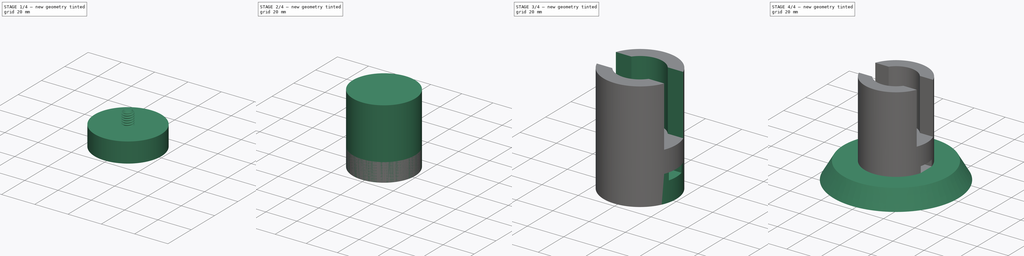
[diagram: build sequence overview — one tinted view per stage of 4, left to right]
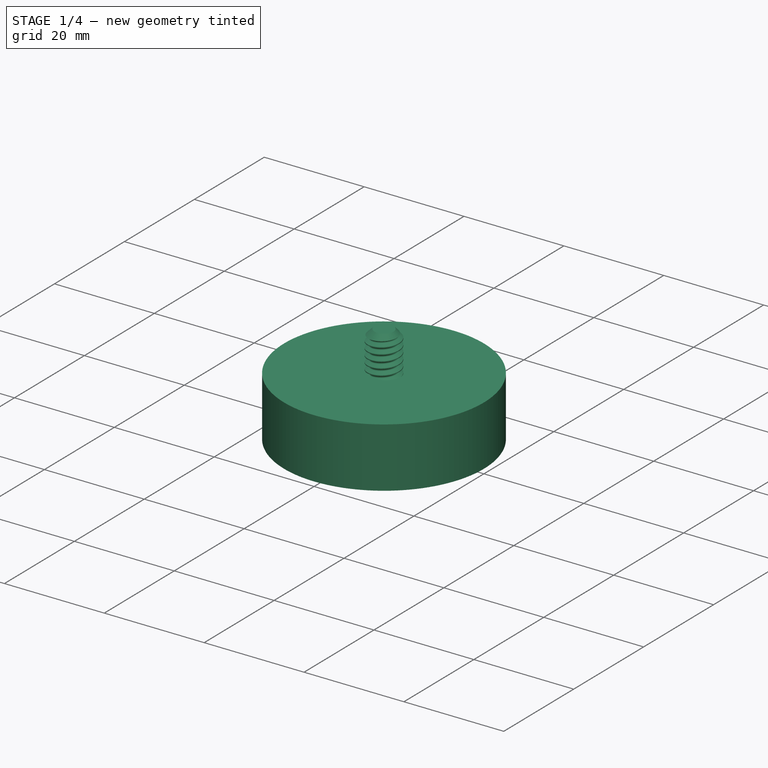
[diagram: stage 1 of 4 — iso view after this stage's code; geometry added in this stage tinted green]
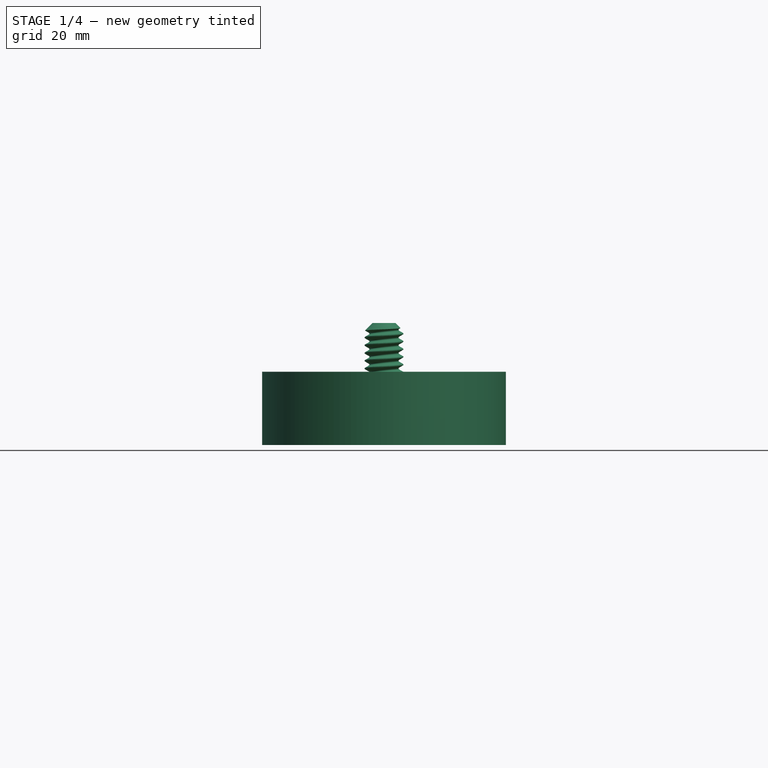
[diagram: stage 1 of 4 — front view after this stage's code; geometry added in this stage tinted green]
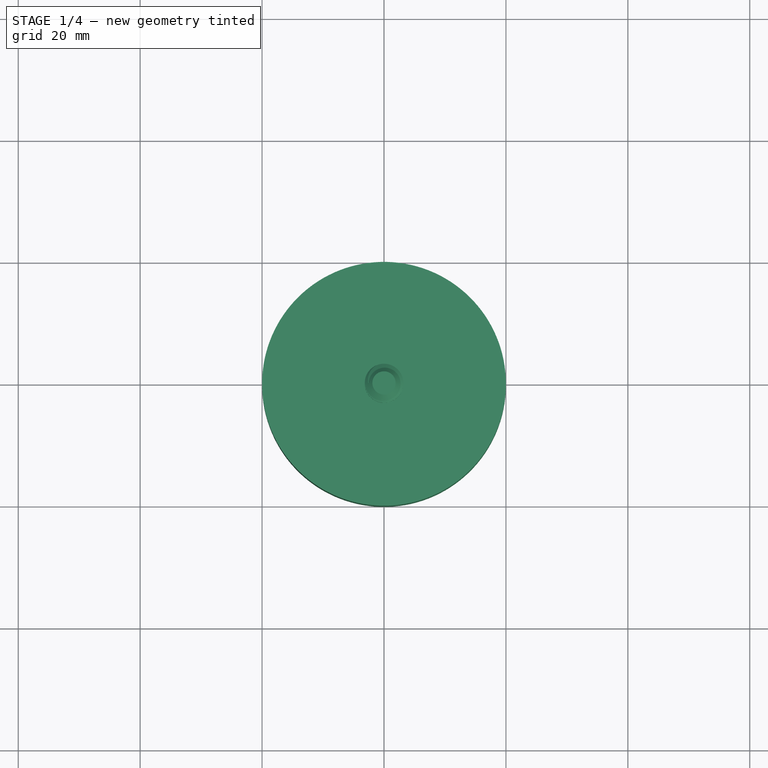
[diagram: stage 1 of 4 — top view after this stage's code; geometry added in this stage tinted green]
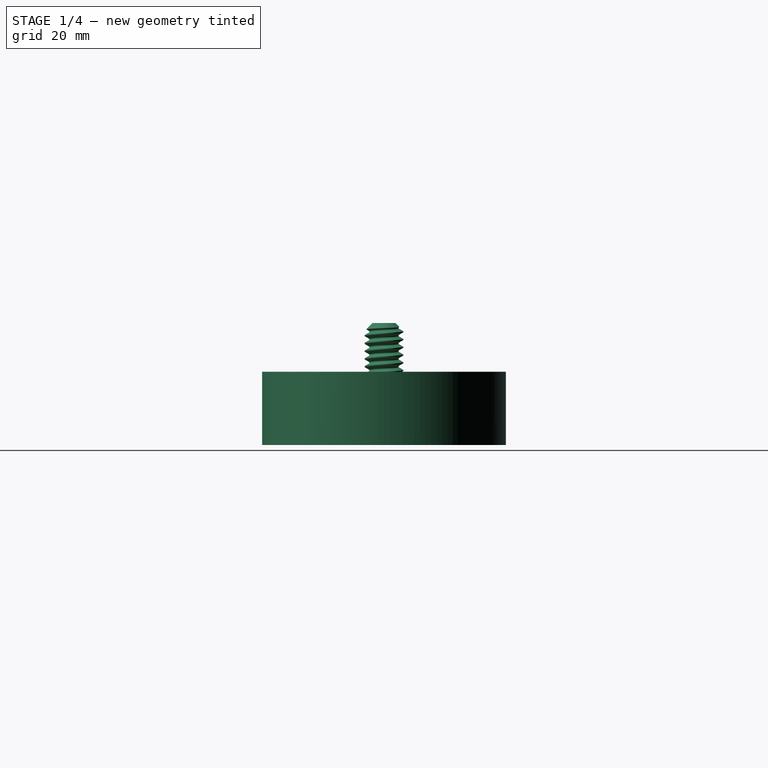
[diagram: stage 1 of 4 — right view after this stage's code; geometry added in this stage tinted green]
FCSTD DOCUMENT  (FreeCAD 2024.2R37240 (Git))
Label: Корпус
License: All rights reserved
LicenseURL: https://en.wikipedia.org/wiki/All_rights_reserved
objects: Sketcher::SketchObject×7, PartDesign::Pad×4, PartDesign::Pocket×3, PartDesign::Body×2, PartDesign::Hole×1, Part::FeaturePython×1, PartDesign::Boolean×1
note: 27 computed .brp shape members not serialized (recipe doc carries the construction recipe); baked Part::Feature solids carry a one-line shape summary decoded from their .brp

FEATURE [PartDesign::Body] Body  label="Main"
  Group = -> [Sketch,Pad,Pad001,Sketch001,Pocket,Sketch002,Pocket001,Sketch003,Sketch004,Pad002,Hole]
  Origin = -> Origin
  Tip = -> Hole
FEATURE [Sketcher::SketchObject] Sketch005
  AttachmentSupport = -> [XY_Plane001]
  FullyConstrained = true
  MapMode = 5
  sketch-geometry (1):
    g0: Circle CenterX=0 CenterY=0 CenterZ=0 NormalX=0 NormalY=0 NormalZ=1 AngleXU=0 Radius=20
  constraints (2):
    c: Coincident(g0,g-1)
    c: Diameter(g0) = 40
FEATURE [PartDesign::Pad] Pad003
  Direction = (0,0,1)
  Length = 12
  Length2 = 10
  Profile = -> Sketch005
  ReferenceAxis = -> Sketch005 [N_Axis]
  Refine = true
  Suppressed = false
  Type = 0
FEATURE [Part::FeaturePython] ThreadedRod  label="1/4inx10-ThreadedRod"  # WARN: FeaturePython — macro-defined, semantics opaque (R4)
  Diameter = 10
  DiameterCustom = 6
  Invert = false
  LeftHanded = false
  Length = 10
  MatchOuter = false
  OffsetAngle = 0
  PitchCustom = 1
  Placement = pos=(-1e-15,0,10) rot=(0,1,0;3.14159rad)
  Thread = true
  Type = 5
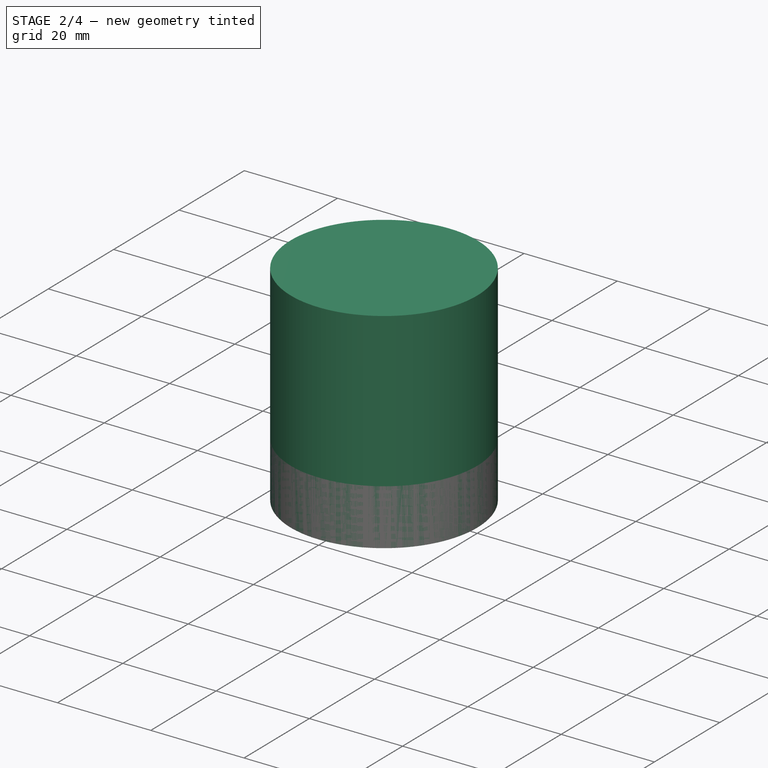
[diagram: stage 2 of 4 — iso view after this stage's code; geometry added in this stage tinted green]
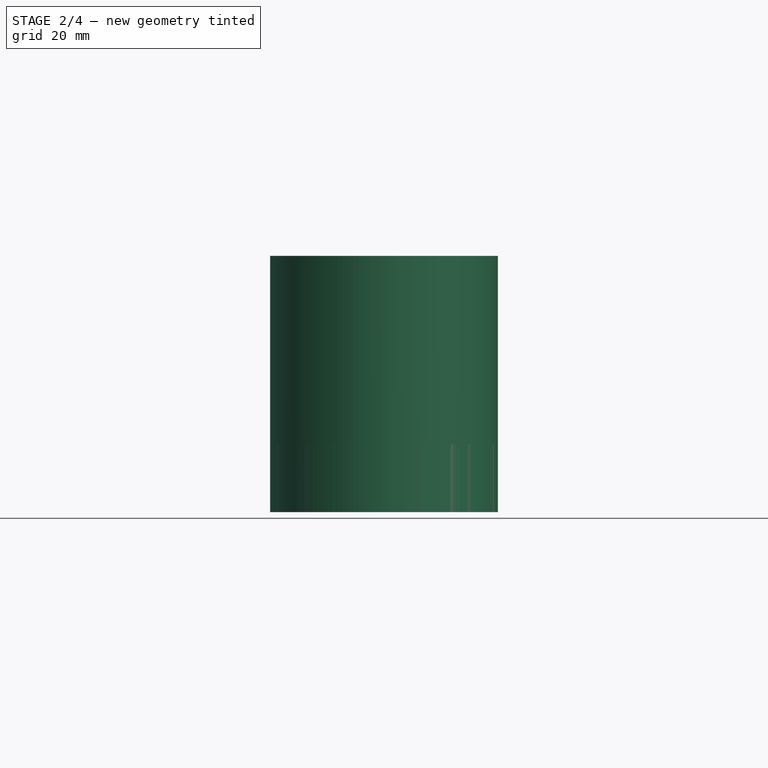
[diagram: stage 2 of 4 — front view after this stage's code; geometry added in this stage tinted green]
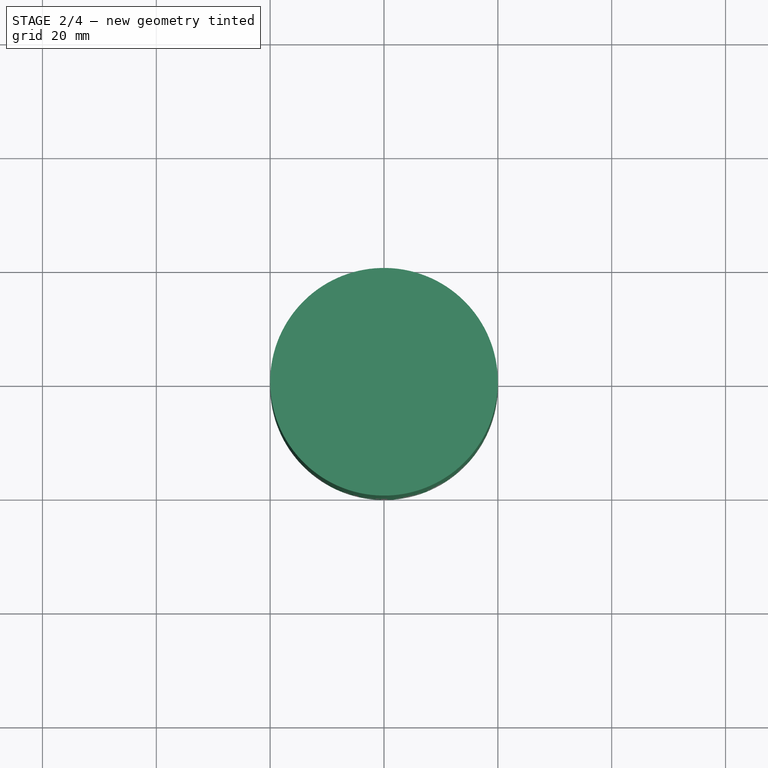
[diagram: stage 2 of 4 — top view after this stage's code; geometry added in this stage tinted green]
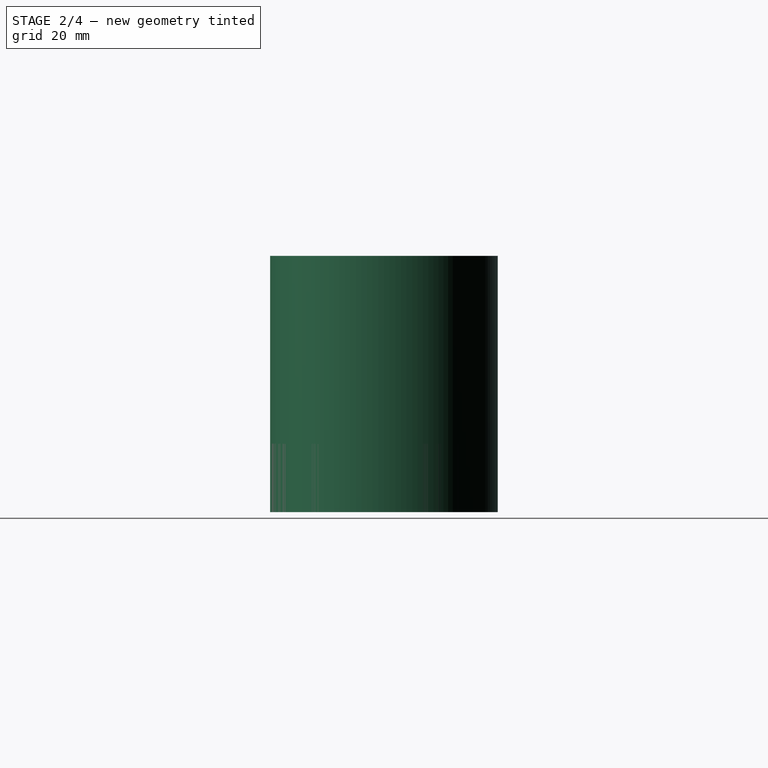
[diagram: stage 2 of 4 — right view after this stage's code; geometry added in this stage tinted green]
FEATURE [Sketcher::SketchObject] Sketch
  FullyConstrained = true
  sketch-geometry (1):
    g0: Circle CenterX=0 CenterY=0 CenterZ=0 NormalX=0 NormalY=0 NormalZ=1 AngleXU=0 Radius=20
  constraints (2):
    c: Coincident(g0,g-1)
    c: Diameter(g0) = 40
FEATURE [PartDesign::Pad] Pad
  Direction = (0,0,1)
  Length = 45
  Length2 = 10
  Profile = -> Sketch
  ReferenceAxis = -> Sketch [N_Axis]
  Refine = true
  Suppressed = false
  Type = 0
FEATURE [Sketcher::SketchObject] Sketch006
  AttachmentSupport = -> [XY_Plane001]
  FullyConstrained = true
  MapMode = 5
  sketch-geometry (3):
    g0: ArcOfCircle CenterX=0 CenterY=0 CenterZ=0 NormalX=0 NormalY=0 NormalZ=1 AngleXU=0 Radius=2.25 StartAngle=0.981765 EndAngle=5.30142
    g1: LineSegment StartX=1.25 StartY=1.87083 StartZ=0 EndX=1.25 EndY=-1.87083 EndZ=0
    g2: LineSegment StartX=-2.25 StartY=-1e-16 StartZ=0 EndX=1.25 EndY=-1e-16 EndZ=0
  constraints (9):
    c: Coincident(g0,g-1)
    c: Vertical(g1)
    c: PointOnObject(g2,g0)
    c: Symmetric(g1,g1,g2)
    c: Horizontal(g2)
    c: Diameter(g0) = 4.5
    c: Distance(g2,g1) = 3.5
    c: Coincident(g0,g1)
    c: Coincident(g0,g1)
FEATURE [PartDesign::Pocket] Pocket002
  BaseFeature = -> Pad003
  Direction = (0,0,-1)
  Length = 8
  Length2 = 5
  Profile = -> Sketch006
  ReferenceAxis = -> Sketch006 [N_Axis]
  Refine = true
  Reversed = true
  Suppressed = false
  Type = 0
FEATURE [PartDesign::Boolean] Boolean
  BaseFeature = -> Pocket002
  Group = -> [ThreadedRod]
  Refine = true
  Suppressed = false
  Type = 0
  UsePlacement = true
FEATURE [PartDesign::Body] Body001  label="Cap"
  Group = -> [Sketch005,Pad003,Sketch006,Pocket002,Boolean]
  Origin = -> Origin001
  Placement = pos=(0,0,58) rot=(0,0,1;0rad)
  Tip = -> Boolean
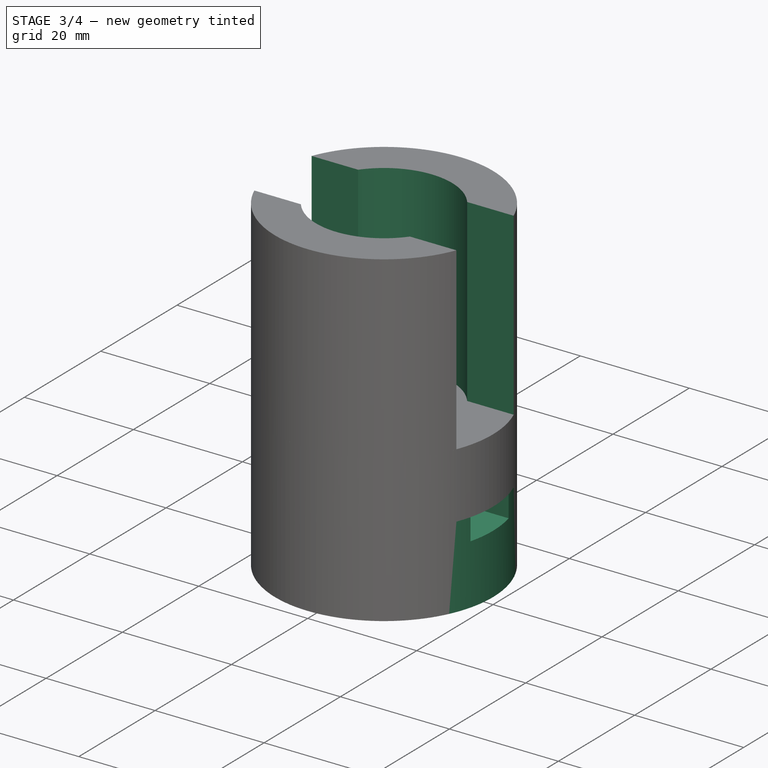
[diagram: stage 3 of 4 — iso view after this stage's code; geometry added in this stage tinted green]
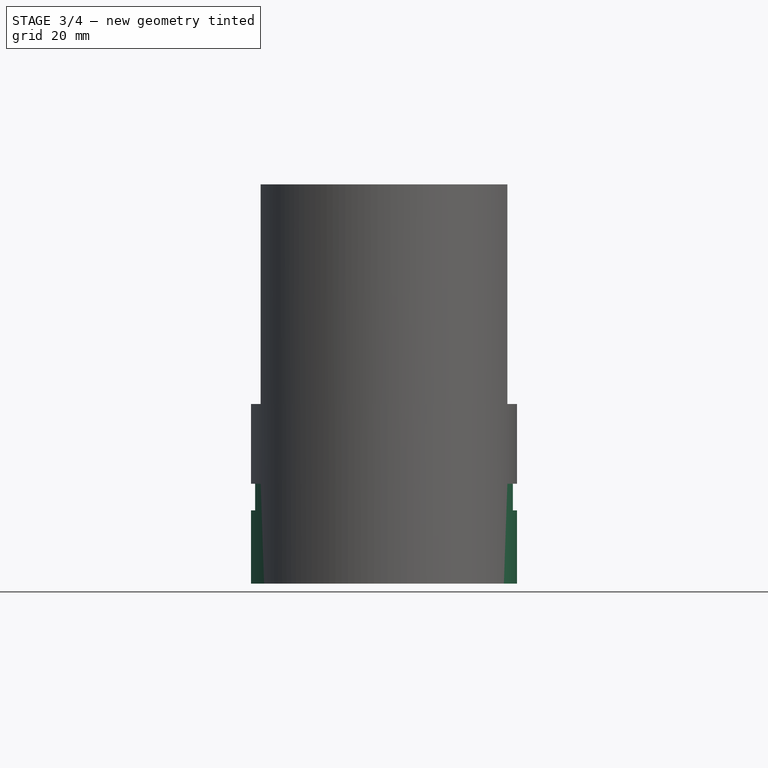
[diagram: stage 3 of 4 — front view after this stage's code; geometry added in this stage tinted green]
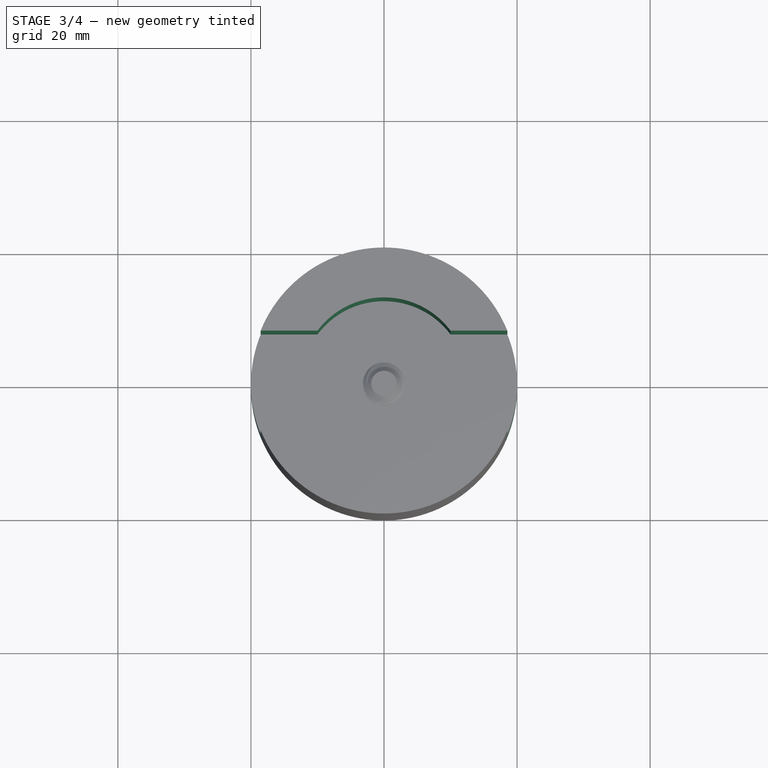
[diagram: stage 3 of 4 — top view after this stage's code; geometry added in this stage tinted green]
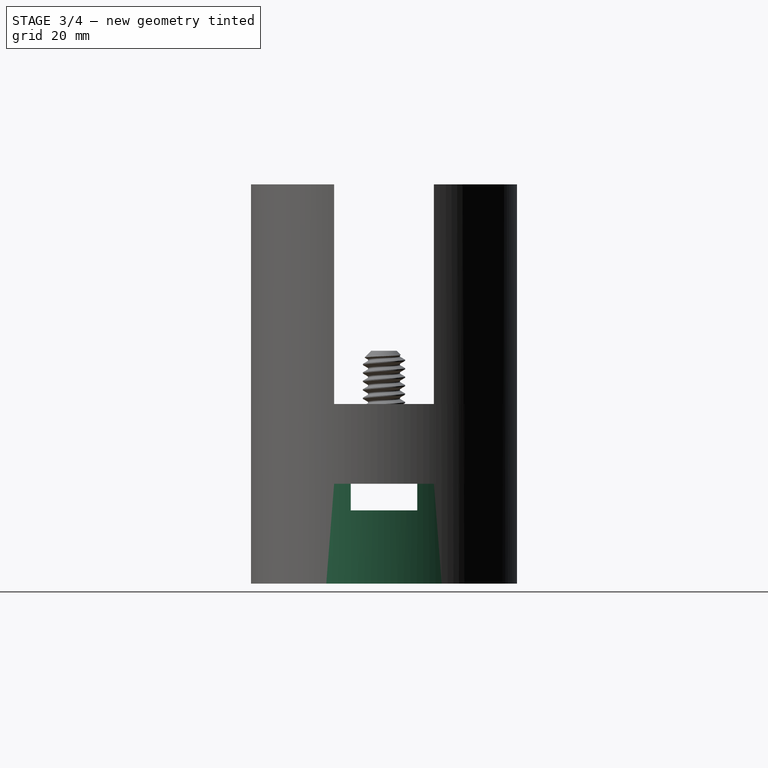
[diagram: stage 3 of 4 — right view after this stage's code; geometry added in this stage tinted green]
FEATURE [PartDesign::Pad] Pad001
  BaseFeature = -> Pad
  Direction = (0,0,1)
  Length = 15
  Length2 = 10
  Profile = -> Sketch
  ReferenceAxis = -> Sketch [N_Axis]
  Refine = true
  Reversed = true
  Suppressed = false
  Type = 0
FEATURE [Sketcher::SketchObject] Sketch001
  AttachmentSupport = -> [XY_Plane]
  FullyConstrained = true
  MapMode = 5
  sketch-geometry (11):
    g0: ArcOfCircle CenterX=0 CenterY=0 CenterZ=0 NormalX=0 NormalY=0 NormalZ=1 AngleXU=0 Radius=12.5 StartAngle=3.78509 EndAngle=5.63968
    g1: LineSegment StartX=-25 StartY=-7.5 StartZ=0 EndX=-10 EndY=-7.5 EndZ=0
    g2: LineSegment StartX=25 StartY=-7.5 StartZ=0 EndX=25 EndY=7.5 EndZ=0
    g3: LineSegment StartX=25 StartY=7.5 StartZ=0 EndX=10 EndY=7.5 EndZ=0
    g4: LineSegment StartX=-25 StartY=7.5 StartZ=0 EndX=-25 EndY=-7.5 EndZ=0
    g5: GeomPoint X=0 Y=0 Z=0
    g6: LineSegment StartX=-10 StartY=7.5 StartZ=0 EndX=10 EndY=-7.5 EndZ=0
    g7: LineSegment StartX=-10 StartY=-7.5 StartZ=0 EndX=10 EndY=7.5 EndZ=0
    g8: LineSegment StartX=-10 StartY=7.5 StartZ=0 EndX=-25 EndY=7.5 EndZ=0
    g9: ArcOfCircle CenterX=0 CenterY=0 CenterZ=0 NormalX=0 NormalY=0 NormalZ=1 AngleXU=0 Radius=12.5 StartAngle=0.643501 EndAngle=2.49809
    g10: LineSegment StartX=10 StartY=-7.5 StartZ=0 EndX=25 EndY=-7.5 EndZ=0
  constraints (30):
    c: Coincident(g0,g-1)
    c: Diameter(g0) = 25
    c: Coincident(g10,g2)
    c: Coincident(g2,g3)
    c: Coincident(g8,g4)
    c: Coincident(g4,g1)
    c: Horizontal(g1)
    c: Horizontal(g3)
    c: Vertical(g2)
    c: Vertical(g4)
    c: Symmetric(g3,g1,g5)
    c: Coincident(g5,g0)
    c: PointOnObject(g6,g3)
    c: PointOnObject(g6,g1)
    c: PointOnObject(g7,g3)
    c: PointOnObject(g7,g0)
    c: PointOnObject(g7,g0)
    c: Coincident(g9,g6)
    c: PointOnObject(g0,g1)
    c: PointOnObject(g8,g0)
    c: Coincident(g9,g3)
    c: Coincident(g0,g9)
    c: Coincident(g1,g7)
    c: Coincident(g10,g0)
    c: Horizontal(g8)
    c: Horizontal(g10)
    c: Coincident(g8,g6)
    c: Coincident(g6,g0)
    c: Distance(g2,g2) = 15
    c: Distance(g10,g10) = 15
FEATURE [PartDesign::Pocket] Pocket
  BaseFeature = -> Pad001
  Direction = (0,0,-1)
  Length = 5
  Length2 = 5
  Profile = -> Sketch001
  ReferenceAxis = -> Sketch001 [N_Axis]
  Refine = true
  Reversed = true
  Suppressed = false
  Type = 1
FEATURE [Sketcher::SketchObject] Sketch002
  AttachmentSupport = -> [YZ_Plane]
  FullyConstrained = true
  MapMode = 5
  Placement = pos=(0,0,0) rot=(0.57735,0.57735,0.57735;2.0944rad)
  sketch-geometry (4):
    g0: LineSegment StartX=-5 StartY=0 StartZ=0 EndX=-5 EndY=-4 EndZ=0
    g1: LineSegment StartX=-5 StartY=-4 StartZ=0 EndX=5 EndY=-4 EndZ=0
    g2: LineSegment StartX=5 StartY=-4 StartZ=0 EndX=5 EndY=0 EndZ=0
    g3: LineSegment StartX=5 StartY=0 StartZ=0 EndX=-5 EndY=0 EndZ=0
  constraints (11):
    c: Coincident(g0,g1)
    c: Coincident(g1,g2)
    c: Coincident(g2,g3)
    c: Coincident(g3,g0)
    c: Vertical(g0)
    c: Vertical(g2)
    c: Horizontal(g1)
    c: PointOnObject(g0,g-1)
    c: Symmetric(g0,g2,g-2)
    c: Distance(g2,g2) = 4
    c: Distance(g1,g1) = 10
FEATURE [PartDesign::Pocket] Pocket001
  BaseFeature = -> Pocket
  Direction = (-1,0,0)
  Length = 23
  Length2 = 5
  Midplane = true
  Profile = -> Sketch002
  ReferenceAxis = -> Sketch002 [N_Axis]
  Refine = true
  Suppressed = false
  Type = 1
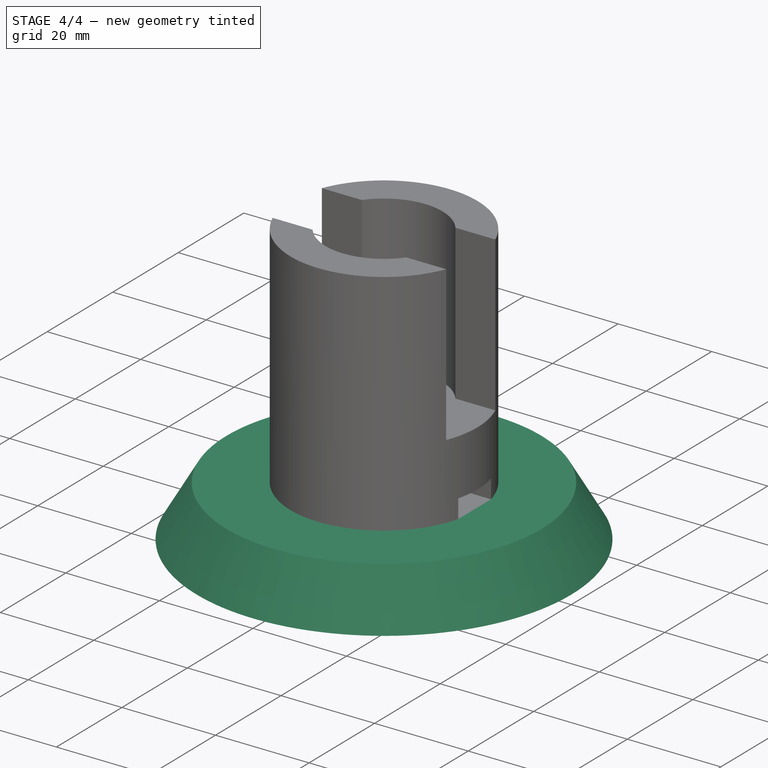
[diagram: stage 4 of 4 — iso view after this stage's code; geometry added in this stage tinted green]
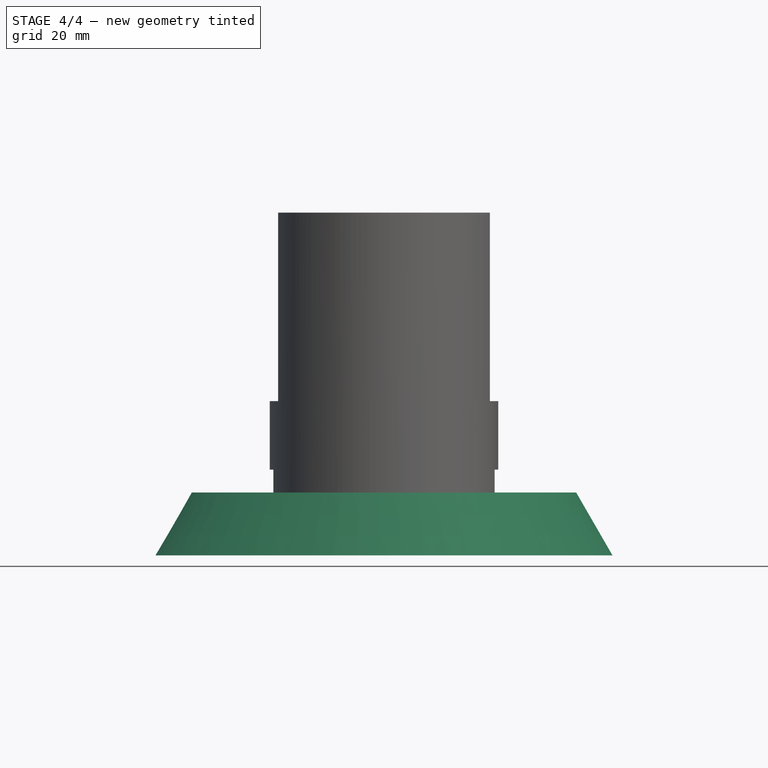
[diagram: stage 4 of 4 — front view after this stage's code; geometry added in this stage tinted green]
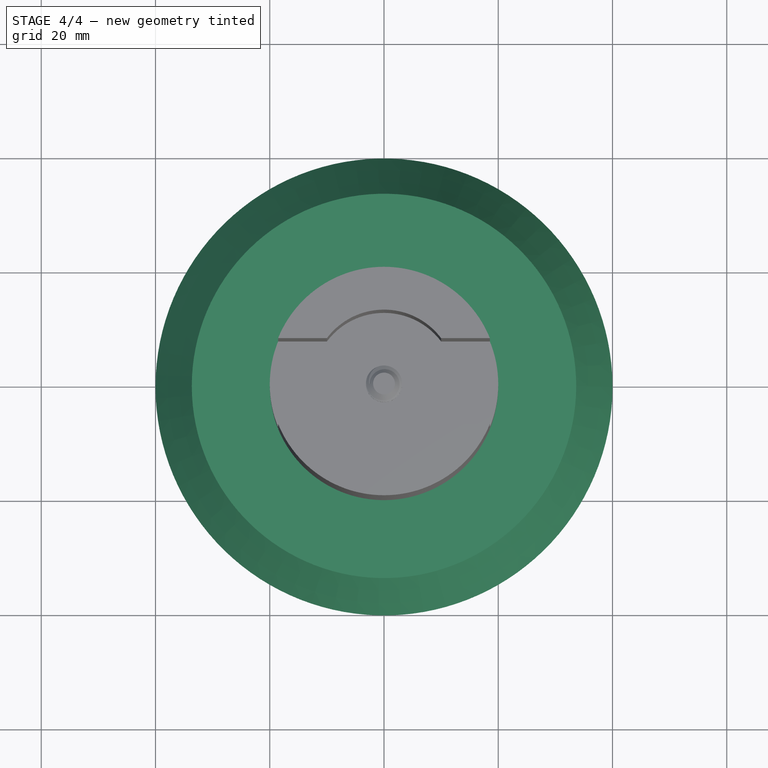
[diagram: stage 4 of 4 — top view after this stage's code; geometry added in this stage tinted green]
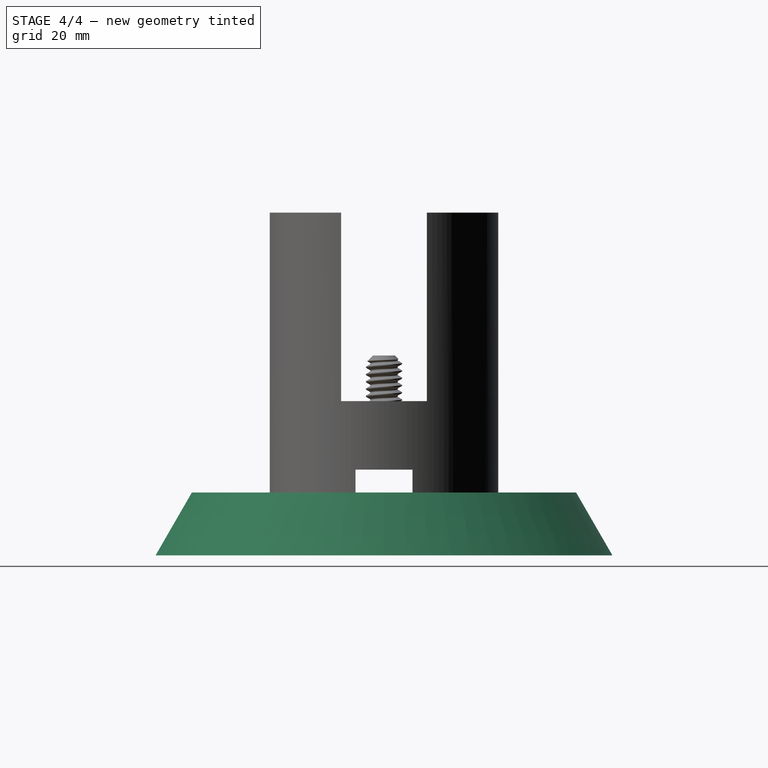
[diagram: stage 4 of 4 — right view after this stage's code; geometry added in this stage tinted green]
FEATURE [Sketcher::SketchObject] Sketch003
  AttachmentSupport = -> [Pocket001]
  FullyConstrained = false
  MapMode = 5
  Placement = pos=(0,0,-15) rot=(1,0,0;3.14159rad)
  sketch-geometry (1):
    g0: Circle CenterX=0 CenterY=0 CenterZ=0 NormalX=0 NormalY=0 NormalZ=1 AngleXU=0 Radius=6.35242
  constraints (1):
    c: Coincident(g0,g-1)
FEATURE [Sketcher::SketchObject] Sketch004
  FullyConstrained = false
  MapMode = 5
  Placement = pos=(0,0,-15) rot=(1,0,0;3.14159rad)
  sketch-geometry (1):
    g0: Circle CenterX=0 CenterY=0 CenterZ=0 NormalX=0 NormalY=0 NormalZ=1 AngleXU=0 Radius=40
  constraints (1):
    c: Coincident(g0,g-1)
FEATURE [PartDesign::Pad] Pad002
  BaseFeature = -> Pocket001
  Direction = (0,0,-1)
  Length = 11
  Length2 = 10
  Profile = -> Sketch004
  ReferenceAxis = -> Sketch004 [N_Axis]
  Refine = true
  Reversed = true
  Suppressed = false
  TaperAngle = -30
  Type = 0
FEATURE [PartDesign::Hole] Hole
  BaseFeature = -> Pad002
  CustomThreadClearance = 0.1
  Depth = 25
  DepthType = 0
  Diameter = 5.2
  DrillForDepth = false
  DrillPoint = 1
  DrillPointAngle = 118
  HoleCutCountersinkAngle = 90
  HoleCutCustomValues = false
  HoleCutDepth = 0
  HoleCutDiameter = 6.1
  HoleCutType = 0
  ModelThread = true
  Profile = -> Sketch003
  Refine = true
  Suppressed = false
  Tapered = false
  TaperedAngle = 90
  ThreadClass = 0
  ThreadDepth = 25
  ThreadDepthType = 0
  ThreadDirection = 0
  ThreadFit = 0
  ThreadSize = 9
  ThreadType = 3
  Threaded = true
  UseCustomThreadClearance = true
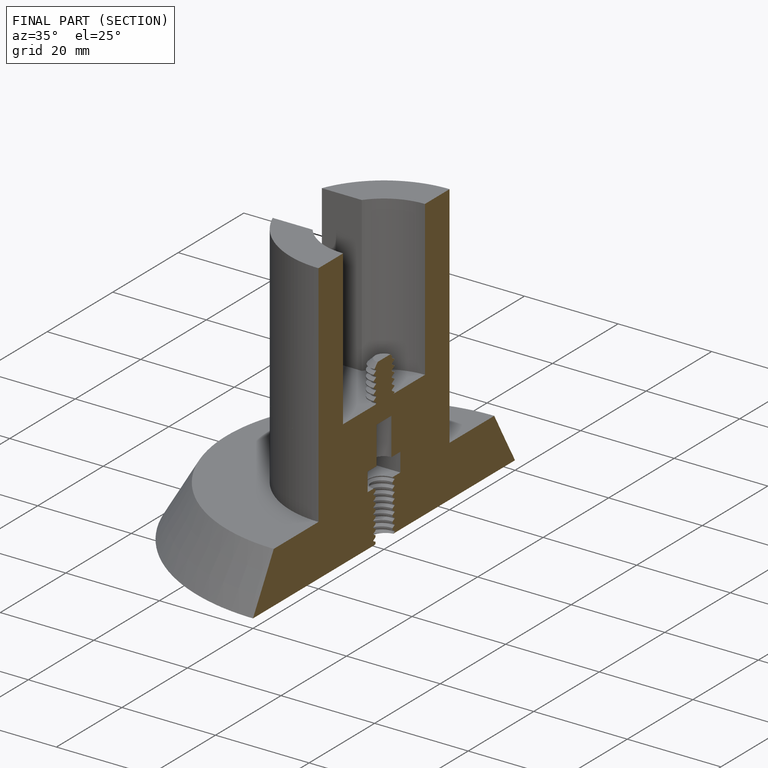
[diagram: finished part — half-section view (interior)]
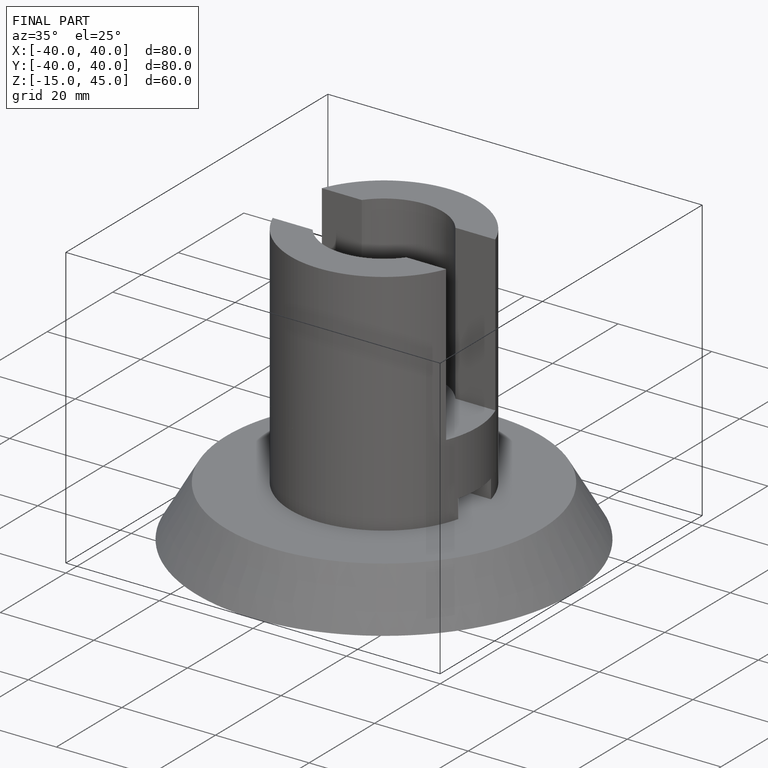
[diagram: finished part — iso view with bounding-box wireframe]
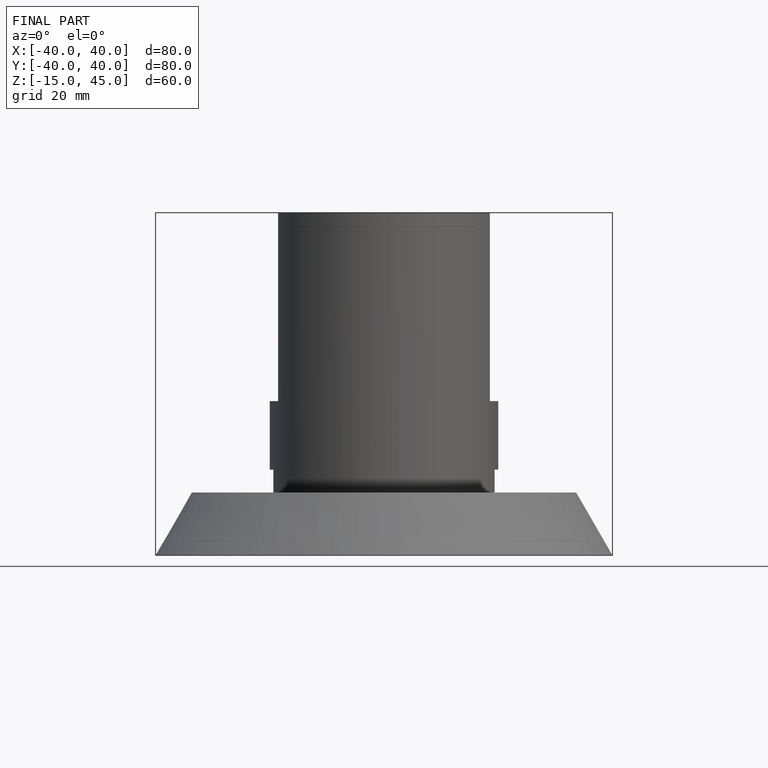
[diagram: finished part — front view with bounding-box wireframe]
